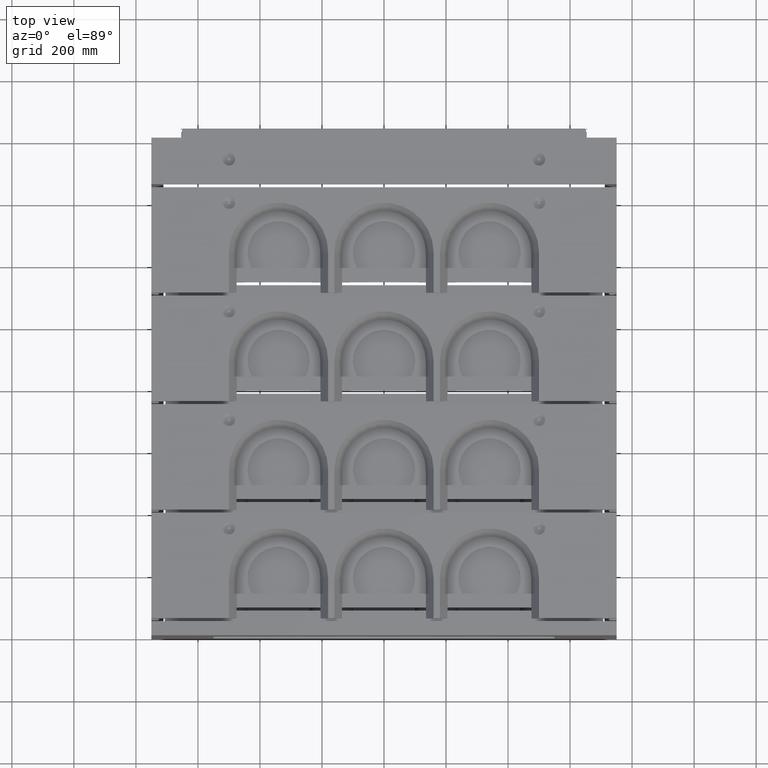
[diagram: clean part render]
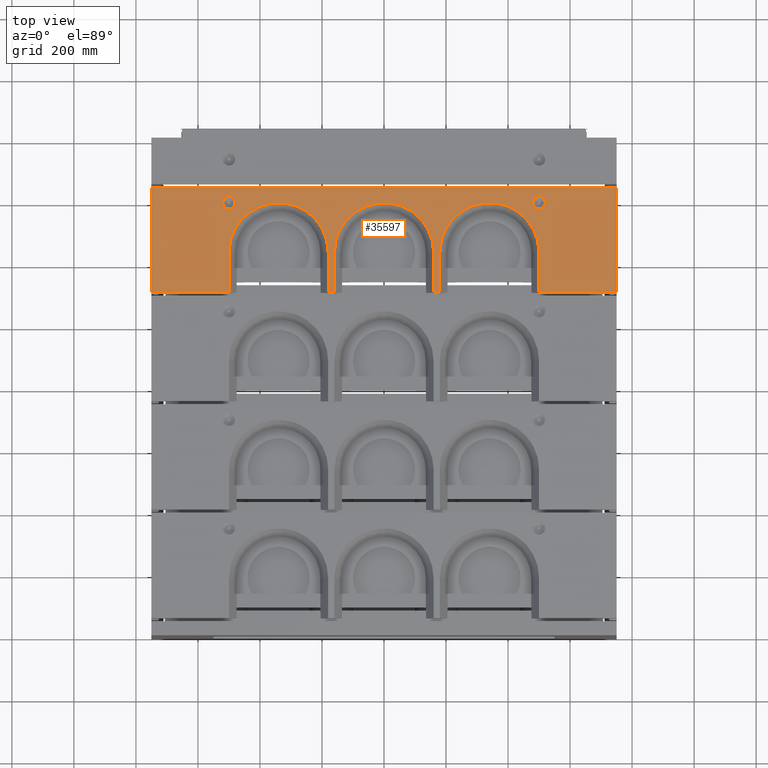
[diagram: same view with one face highlighted and labeled with its STEP entity id]
A machine part, top view. The second image highlights one B-rep face of the part: STEP entity #35597.
In plain terms, the highlighted planar face has unit normal (-0, 0, -1).
Its self-contained STEP definition (entity closure, byte-faithful):
#774 = LINE ( 'NONE', #37073, #13970 ) ;
#1095 = DIRECTION ( 'NONE',  ( 1.000000000000000000, 1.309632362183320380E-32, -2.659909329831104930E-17 ) ) ;
#1100 = CARTESIAN_POINT ( 'NONE',  ( 160.0000000000000284, 1234.999999999999773, 400.0000000000004547 ) ) ;
#1392 = EDGE_CURVE ( 'NONE', #45603, #50858, #36283, .T. ) ;
#1414 = CARTESIAN_POINT ( 'NONE',  ( 500.0000000000001137, 1395.000000000000000, 400.0000000000005116 ) ) ;
#1434 = DIRECTION ( 'NONE',  ( -1.881626355904905735E-48, -1.000000000000000000, -2.775557561562891351E-16 ) ) ;
#1685 = LINE ( 'NONE', #44558, #49841 ) ;
#1796 = DIRECTION ( 'NONE',  ( -4.440892098500626162E-16, 1.000000000000000000, 2.775557561562891351E-16 ) ) ;
#2355 = AXIS2_PLACEMENT_3D ( 'NONE', #45655, #49166, #5794 ) ;
#2762 = CARTESIAN_POINT ( 'NONE',  ( -500.0000000000003411, 1395.000000000000000, 400.0000000000005116 ) ) ;
#2770 = CARTESIAN_POINT ( 'NONE',  ( 520.0000000000001137, 1395.000000000000000, 400.0000000000005116 ) ) ;
#3061 = EDGE_CURVE ( 'NONE', #36143, #36143, #26686, .T. ) ;
#3491 = VECTOR ( 'NONE', #40828, 1000.000000000000000 ) ;
#3635 = VECTOR ( 'NONE', #3801, 1000.000000000000000 ) ;
#3801 = DIRECTION ( 'NONE',  ( -1.881626355904905735E-48, -1.000000000000000000, -2.775557561562891351E-16 ) ) ;
#3934 = DIRECTION ( 'NONE',  ( -4.440892098500626162E-16, 1.000000000000000000, 2.775557561562891351E-16 ) ) ;
#4356 = CARTESIAN_POINT ( 'NONE',  ( -500.0000000000001137, 1105.000000000000000, 400.0000000000004547 ) ) ;
#4676 = VECTOR ( 'NONE', #20446, 1000.000000000000000 ) ;
#4969 = ORIENTED_EDGE ( 'NONE', *, *, #1392, .T. ) ;
#5014 = VERTEX_POINT ( 'NONE', #31011 ) ;
#5166 = CARTESIAN_POINT ( 'NONE',  ( -339.9999999999999432, 1234.999999999999773, 400.0000000000004547 ) ) ;
#5369 = EDGE_LOOP ( 'NONE', ( #33573 ) ) ;
#5372 = EDGE_CURVE ( 'NONE', #40490, #40490, #49946, .T. ) ;
#5573 = EDGE_CURVE ( 'NONE', #21041, #40688, #43005, .T. ) ;
#5773 = CARTESIAN_POINT ( 'NONE',  ( 750.0000000000000000, 1105.000000000000000, 400.0000000000003979 ) ) ;
#5794 = DIRECTION ( 'NONE',  ( 1.000000000000000000, 0.0000000000000000000, 0.0000000000000000000 ) ) ;
#6031 = ORIENTED_EDGE ( 'NONE', *, *, #23924, .T. ) ;
#6254 = LINE ( 'NONE', #16858, #26320 ) ;
#6536 = ORIENTED_EDGE ( 'NONE', *, *, #30966, .F. ) ;
#7162 = CARTESIAN_POINT ( 'NONE',  ( -500.0000000000001137, 984.9999999999998863, 400.0000000000003979 ) ) ;
#7334 = VECTOR ( 'NONE', #15064, 1000.000000000000000 ) ;
#7398 = CARTESIAN_POINT ( 'NONE',  ( 180.0000000000000000, 1105.000000000000000, 400.0000000000004547 ) ) ;
#7409 = FACE_BOUND ( 'NONE', #19612, .T. ) ;
#8436 = EDGE_CURVE ( 'NONE', #25468, #21041, #19276, .T. ) ;
#9328 = VERTEX_POINT ( 'NONE', #47215 ) ;
#9645 = CARTESIAN_POINT ( 'NONE',  ( 179.9999999999999432, 1234.999999999999773, 400.0000000000004547 ) ) ;
#10914 = CARTESIAN_POINT ( 'NONE',  ( 340.0000000000000000, 1234.999999999999773, 400.0000000000004547 ) ) ;
#10956 = DIRECTION ( 'NONE',  ( -2.659909329831104930E-17, 4.996003610813204432E-16, -1.000000000000000000 ) ) ;
#11091 = DIRECTION ( 'NONE',  ( 1.000000000000000000, 0.0000000000000000000, 0.0000000000000000000 ) ) ;
#11118 = VECTOR ( 'NONE', #3934, 1000.000000000000000 ) ;
#12859 = EDGE_CURVE ( 'NONE', #25468, #17018, #6254, .T. ) ;
#13308 = DIRECTION ( 'NONE',  ( -1.881626355904905735E-48, -1.000000000000000000, -2.775557561562891351E-16 ) ) ;
#13629 = VERTEX_POINT ( 'NONE', #21795 ) ;
#13683 = AXIS2_PLACEMENT_3D ( 'NONE', #2762, #31284, #35446 ) ;
#13970 = VECTOR ( 'NONE', #1434, 1000.000000000000000 ) ;
#14089 = LINE ( 'NONE', #40296, #4676 ) ;
#14425 = ORIENTED_EDGE ( 'NONE', *, *, #46511, .T. ) ;
#14491 = EDGE_CURVE ( 'NONE', #21747, #42574, #14089, .T. ) ;
#14558 = EDGE_CURVE ( 'NONE', #24301, #31046, #40371, .T. ) ;
#14630 = CARTESIAN_POINT ( 'NONE',  ( 750.0000000000000000, 1105.000000000000000, 400.0000000000003979 ) ) ;
#14652 = VECTOR ( 'NONE', #1796, 1000.000000000000000 ) ;
#15017 = EDGE_CURVE ( 'NONE', #13629, #36419, #29693, .T. ) ;
#15064 = DIRECTION ( 'NONE',  ( -1.881626355904905735E-48, -1.000000000000000000, -2.775557561562891351E-16 ) ) ;
#15454 = LINE ( 'NONE', #29756, #47318 ) ;
#16858 = CARTESIAN_POINT ( 'NONE',  ( 750.0000000000000000, 1105.000000000000000, 400.0000000000003979 ) ) ;
#17018 = VERTEX_POINT ( 'NONE', #38245 ) ;
#17334 = LINE ( 'NONE', #7162, #7334 ) ;
#19071 = ORIENTED_EDGE ( 'NONE', *, *, #44290, .F. ) ;
#19276 = LINE ( 'NONE', #27937, #11118 ) ;
#19465 = ORIENTED_EDGE ( 'NONE', *, *, #30116, .F. ) ;
#19612 = EDGE_LOOP ( 'NONE', ( #22690 ) ) ;
#20446 = DIRECTION ( 'NONE',  ( 1.000000000000000000, 1.309632362183320380E-32, -2.659909329831104930E-17 ) ) ;
#21041 = VERTEX_POINT ( 'NONE', #30955 ) ;
#21721 = EDGE_CURVE ( 'NONE', #13629, #29616, #41617, .T. ) ;
#21747 = VERTEX_POINT ( 'NONE', #35222 ) ;
#21795 = CARTESIAN_POINT ( 'NONE',  ( 160.0000000000000853, 1105.000000000000000, 400.0000000000004547 ) ) ;
#21984 = EDGE_LOOP ( 'NONE', ( #6536, #14425, #4969, #24193, #26515, #6031, #39521, #19465, #43208, #28556, #23000, #33191, #43086, #27058, #39333, #19071 ) ) ;
#22690 = ORIENTED_EDGE ( 'NONE', *, *, #5372, .F. ) ;
#23000 = ORIENTED_EDGE ( 'NONE', *, *, #12859, .T. ) ;
#23113 = VECTOR ( 'NONE', #31031, 1000.000000000000000 ) ;
#23924 = EDGE_CURVE ( 'NONE', #21747, #24301, #15454, .T. ) ;
#24152 = AXIS2_PLACEMENT_3D ( 'NONE', #1414, #45808, #49829 ) ;
#24193 = ORIENTED_EDGE ( 'NONE', *, *, #32320, .F. ) ;
#24301 = VERTEX_POINT ( 'NONE', #51796 ) ;
#24838 = CARTESIAN_POINT ( 'NONE',  ( -179.9999999999999432, 1105.000000000000000, 400.0000000000004547 ) ) ;
#24859 = EDGE_CURVE ( 'NONE', #5014, #17018, #44309, .T. ) ;
#25352 = VERTEX_POINT ( 'NONE', #9645 ) ;
#25468 = VERTEX_POINT ( 'NONE', #24838 ) ;
#26320 = VECTOR ( 'NONE', #1095, 1000.000000000000000 ) ;
#26515 = ORIENTED_EDGE ( 'NONE', *, *, #14491, .F. ) ;
#26555 = CARTESIAN_POINT ( 'NONE',  ( 160.0000000000000284, 1234.999999999999773, 400.0000000000004547 ) ) ;
#26686 = CIRCLE ( 'NONE', #24152, 20.00000000000001776 ) ;
#27058 = ORIENTED_EDGE ( 'NONE', *, *, #15017, .F. ) ;
#27091 = DIRECTION ( 'NONE',  ( -1.000000000000000000, -1.309632362183320380E-32, 2.659909329831104930E-17 ) ) ;
#27481 = FACE_OUTER_BOUND ( 'NONE', #21984, .T. ) ;
#27937 = CARTESIAN_POINT ( 'NONE',  ( -180.0000000000000568, 1234.999999999999773, 400.0000000000004547 ) ) ;
#28173 = DIRECTION ( 'NONE',  ( 4.440892098500626162E-16, -1.000000000000000000, -2.775557561562891351E-16 ) ) ;
#28556 = ORIENTED_EDGE ( 'NONE', *, *, #8436, .F. ) ;
#29310 = AXIS2_PLACEMENT_3D ( 'NONE', #10914, #35045, #11091 ) ;
#29616 = VERTEX_POINT ( 'NONE', #7398 ) ;
#29693 = LINE ( 'NONE', #1100, #14652 ) ;
#29756 = CARTESIAN_POINT ( 'NONE',  ( -750.0000000000003411, 1480.000000000000000, 400.0000000000005684 ) ) ;
#30116 = EDGE_CURVE ( 'NONE', #40688, #31046, #17334, .T. ) ;
#30955 = CARTESIAN_POINT ( 'NONE',  ( -180.0000000000000568, 1234.999999999999773, 400.0000000000004547 ) ) ;
#30966 = EDGE_CURVE ( 'NONE', #9328, #25352, #51715, .T. ) ;
#31011 = CARTESIAN_POINT ( 'NONE',  ( -160.0000000000000284, 1234.999999999999773, 400.0000000000004547 ) ) ;
#31031 = DIRECTION ( 'NONE',  ( -1.881626355904905735E-48, -1.000000000000000000, -2.775557561562891351E-16 ) ) ;
#31046 = VERTEX_POINT ( 'NONE', #4356 ) ;
#31284 = DIRECTION ( 'NONE',  ( 3.469446951953615421E-17, -4.996003610813204432E-16, 1.000000000000000000 ) ) ;
#31441 = CIRCLE ( 'NONE', #2355, 160.0000000000000284 ) ;
#31897 = VECTOR ( 'NONE', #49484, 1000.000000000000000 ) ;
#32320 = EDGE_CURVE ( 'NONE', #42574, #50858, #46186, .T. ) ;
#33191 = ORIENTED_EDGE ( 'NONE', *, *, #24859, .F. ) ;
#33573 = ORIENTED_EDGE ( 'NONE', *, *, #3061, .F. ) ;
#33951 = PLANE ( 'NONE',  #43897 ) ;
#34192 = CARTESIAN_POINT ( 'NONE',  ( 750.0000000000000000, 1105.000000000000000, 400.0000000000003979 ) ) ;
#35045 = DIRECTION ( 'NONE',  ( 1.734723475976807711E-17, -4.996003610813204432E-16, 1.000000000000000000 ) ) ;
#35222 = CARTESIAN_POINT ( 'NONE',  ( -750.0000000000003411, 1444.999999999999773, 400.0000000000005684 ) ) ;
#35446 = DIRECTION ( 'NONE',  ( 1.000000000000000000, 0.0000000000000000000, 0.0000000000000000000 ) ) ;
#35597 = ADVANCED_FACE ( 'NONE', ( #39952, #7409, #27481 ), #33951, .F. ) ;
#36143 = VERTEX_POINT ( 'NONE', #2770 ) ;
#36283 = LINE ( 'NONE', #5773, #31897 ) ;
#36419 = VERTEX_POINT ( 'NONE', #26555 ) ;
#36812 = CARTESIAN_POINT ( 'NONE',  ( 750.0000000000000000, 1105.000000000000000, 400.0000000000003979 ) ) ;
#37073 = CARTESIAN_POINT ( 'NONE',  ( 180.0000000000000000, 984.9999999999998863, 400.0000000000003979 ) ) ;
#38245 = CARTESIAN_POINT ( 'NONE',  ( -160.0000000000000284, 1105.000000000000000, 400.0000000000004547 ) ) ;
#38766 = AXIS2_PLACEMENT_3D ( 'NONE', #5166, #40640, #44866 ) ;
#38861 = CARTESIAN_POINT ( 'NONE',  ( -160.0000000000000284, 984.9999999999998863, 400.0000000000003979 ) ) ;
#38936 = CARTESIAN_POINT ( 'NONE',  ( -480.0000000000003979, 1395.000000000000000, 400.0000000000005116 ) ) ;
#39333 = ORIENTED_EDGE ( 'NONE', *, *, #21721, .T. ) ;
#39521 = ORIENTED_EDGE ( 'NONE', *, *, #14558, .T. ) ;
#39952 = FACE_BOUND ( 'NONE', #5369, .T. ) ;
#40296 = CARTESIAN_POINT ( 'NONE',  ( 750.0000000000000000, 1444.999999999999773, 400.0000000000005116 ) ) ;
#40371 = LINE ( 'NONE', #36812, #3491 ) ;
#40490 = VERTEX_POINT ( 'NONE', #38936 ) ;
#40640 = DIRECTION ( 'NONE',  ( 1.734723475976807711E-17, -4.996003610813204432E-16, 1.000000000000000000 ) ) ;
#40688 = VERTEX_POINT ( 'NONE', #46015 ) ;
#40828 = DIRECTION ( 'NONE',  ( 1.000000000000000000, 1.309632362183320380E-32, -2.659909329831104930E-17 ) ) ;
#40989 = CARTESIAN_POINT ( 'NONE',  ( 750.0000000000000000, 1444.999999999999773, 400.0000000000005116 ) ) ;
#41617 = LINE ( 'NONE', #14630, #51731 ) ;
#42574 = VERTEX_POINT ( 'NONE', #40989 ) ;
#42764 = CARTESIAN_POINT ( 'NONE',  ( 750.0000000000000000, 1480.000000000000000, 400.0000000000005116 ) ) ;
#43005 = CIRCLE ( 'NONE', #38766, 160.0000000000000284 ) ;
#43086 = ORIENTED_EDGE ( 'NONE', *, *, #44244, .F. ) ;
#43208 = ORIENTED_EDGE ( 'NONE', *, *, #5573, .F. ) ;
#43897 = AXIS2_PLACEMENT_3D ( 'NONE', #42764, #10956, #27091 ) ;
#44244 = EDGE_CURVE ( 'NONE', #36419, #5014, #31441, .T. ) ;
#44290 = EDGE_CURVE ( 'NONE', #25352, #29616, #774, .T. ) ;
#44309 = LINE ( 'NONE', #38861, #23113 ) ;
#44558 = CARTESIAN_POINT ( 'NONE',  ( 499.9999999999999432, 1479.999999999999773, 400.0000000000005116 ) ) ;
#44866 = DIRECTION ( 'NONE',  ( 1.000000000000000000, 0.0000000000000000000, 0.0000000000000000000 ) ) ;
#45558 = CARTESIAN_POINT ( 'NONE',  ( 500.0000000000001137, 1105.000000000000000, 400.0000000000003979 ) ) ;
#45603 = VERTEX_POINT ( 'NONE', #45558 ) ;
#45655 = CARTESIAN_POINT ( 'NONE',  ( 0.0000000000000000000, 1234.999999999999773, 400.0000000000004547 ) ) ;
#45808 = DIRECTION ( 'NONE',  ( 3.469446951953615421E-17, -4.996003610813204432E-16, 1.000000000000000000 ) ) ;
#46015 = CARTESIAN_POINT ( 'NONE',  ( -500.0000000000001137, 1234.999999999999773, 400.0000000000004547 ) ) ;
#46186 = LINE ( 'NONE', #51447, #3635 ) ;
#46511 = EDGE_CURVE ( 'NONE', #9328, #45603, #1685, .T. ) ;
#47215 = CARTESIAN_POINT ( 'NONE',  ( 500.0000000000000000, 1234.999999999999773, 400.0000000000004547 ) ) ;
#47318 = VECTOR ( 'NONE', #13308, 1000.000000000000000 ) ;
#49166 = DIRECTION ( 'NONE',  ( 1.734723475976807711E-17, -4.996003610813204432E-16, 1.000000000000000000 ) ) ;
#49484 = DIRECTION ( 'NONE',  ( 1.000000000000000000, 1.309632362183320380E-32, -2.659909329831104930E-17 ) ) ;
#49829 = DIRECTION ( 'NONE',  ( 1.000000000000000000, 0.0000000000000000000, 0.0000000000000000000 ) ) ;
#49841 = VECTOR ( 'NONE', #28173, 1000.000000000000000 ) ;
#49946 = CIRCLE ( 'NONE', #13683, 19.99999999999996092 ) ;
#50127 = DIRECTION ( 'NONE',  ( 1.000000000000000000, 1.309632362183320380E-32, -2.659909329831104930E-17 ) ) ;
#50858 = VERTEX_POINT ( 'NONE', #34192 ) ;
#51447 = CARTESIAN_POINT ( 'NONE',  ( 750.0000000000000000, 1480.000000000000000, 400.0000000000005116 ) ) ;
#51715 = CIRCLE ( 'NONE', #29310, 159.9999999999999716 ) ;
#51731 = VECTOR ( 'NONE', #50127, 1000.000000000000000 ) ;
#51796 = CARTESIAN_POINT ( 'NONE',  ( -750.0000000000003411, 1105.000000000000000, 400.0000000000004547 ) ) ;